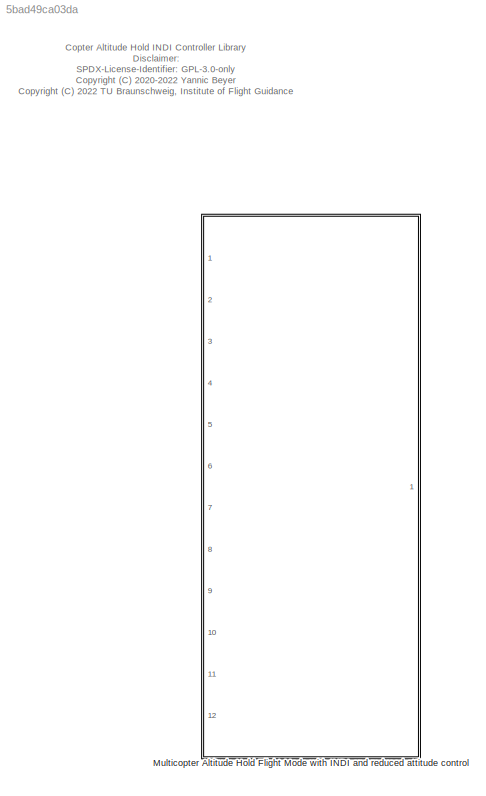
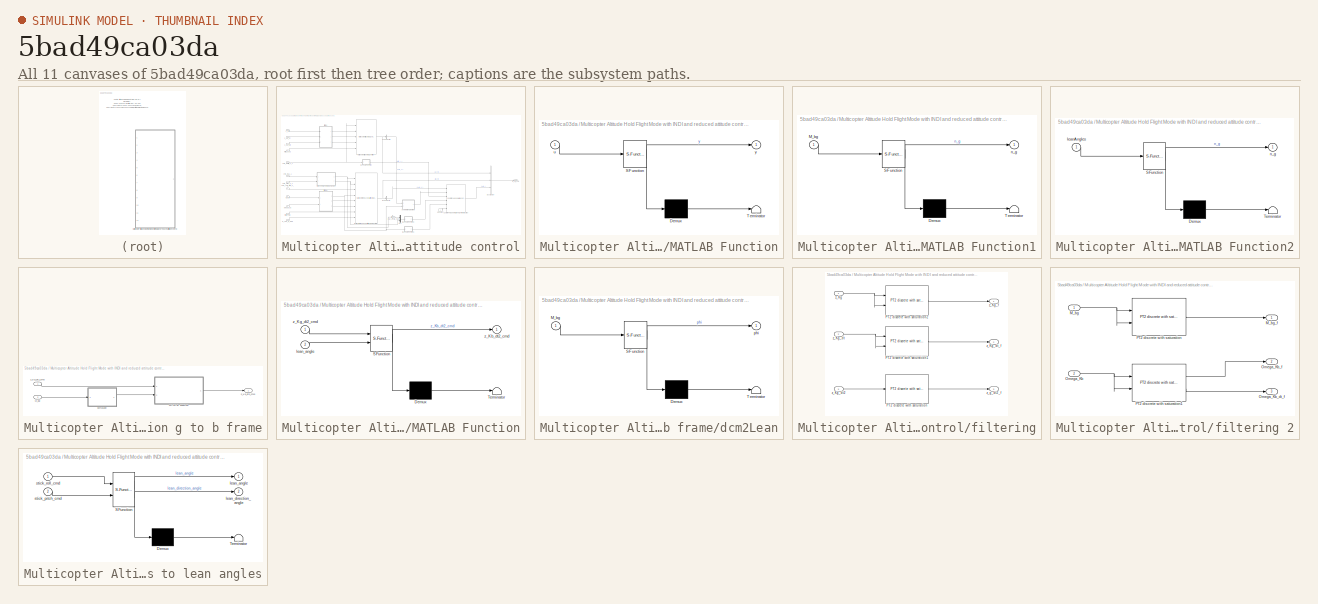
[diagram: thumbnail index - all 11 canvases of the model, root first then tree order]
MODEL slx_5bad49ca03da
KIND library
CONFIG AbsTol = auto
CONFIG EnableMultiTasking = off
CONFIG FixedStep = auto
CONFIG MaxStep = auto
CONFIG MinStep = auto
CONFIG RelTol = 1e-3
CONFIG SampleTimeConstraint = Unconstrained
CONFIG Solver = VariableStepAuto
CONFIG SolverName = VariableStepAuto
CONFIG StartTime = 0.0
CONFIG StopTime = 10.0
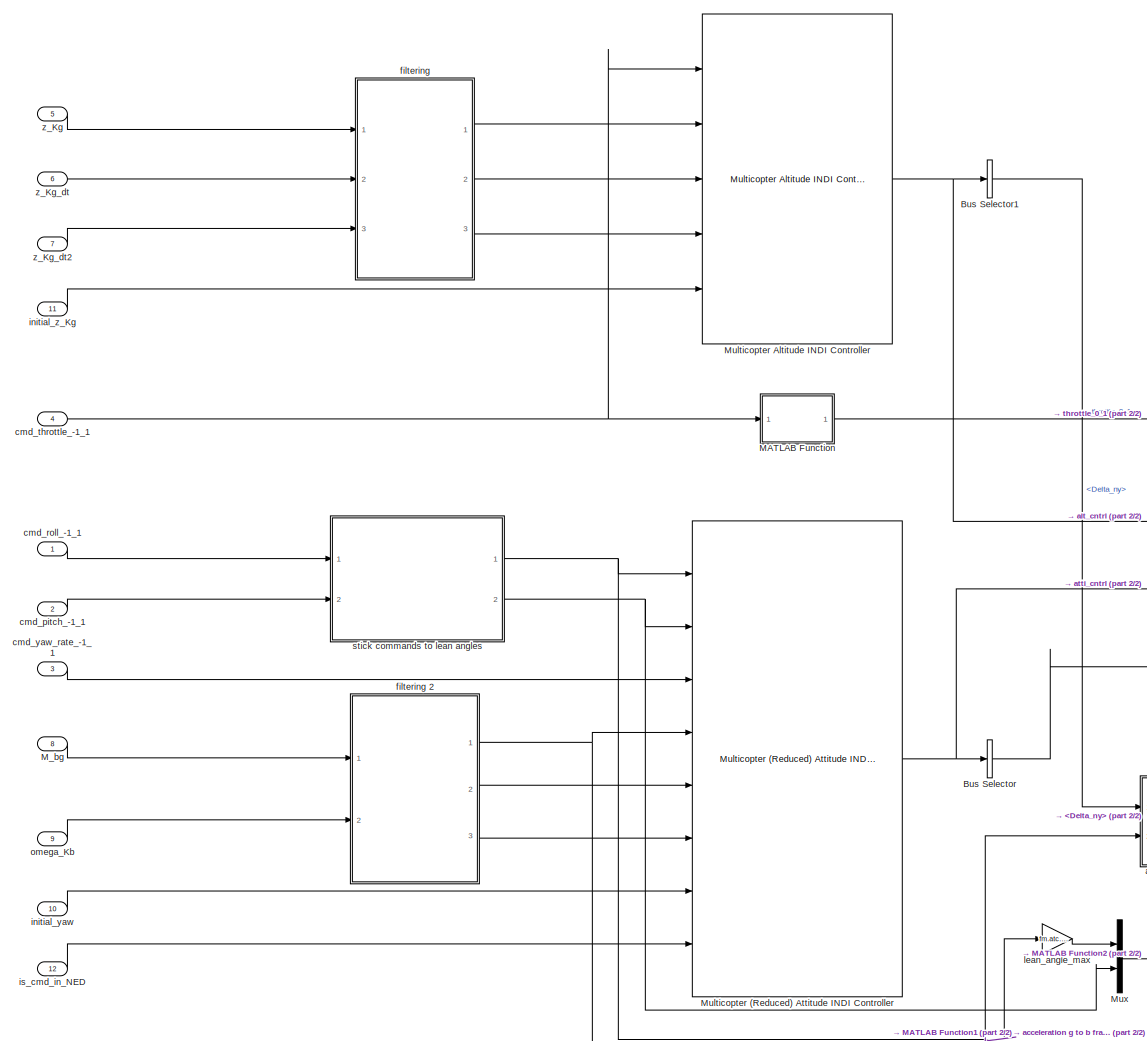
[diagram: Multicopter Altitude Hold Flight Mode with INDI and reduced attitude control - part 1/2, left side, full height]
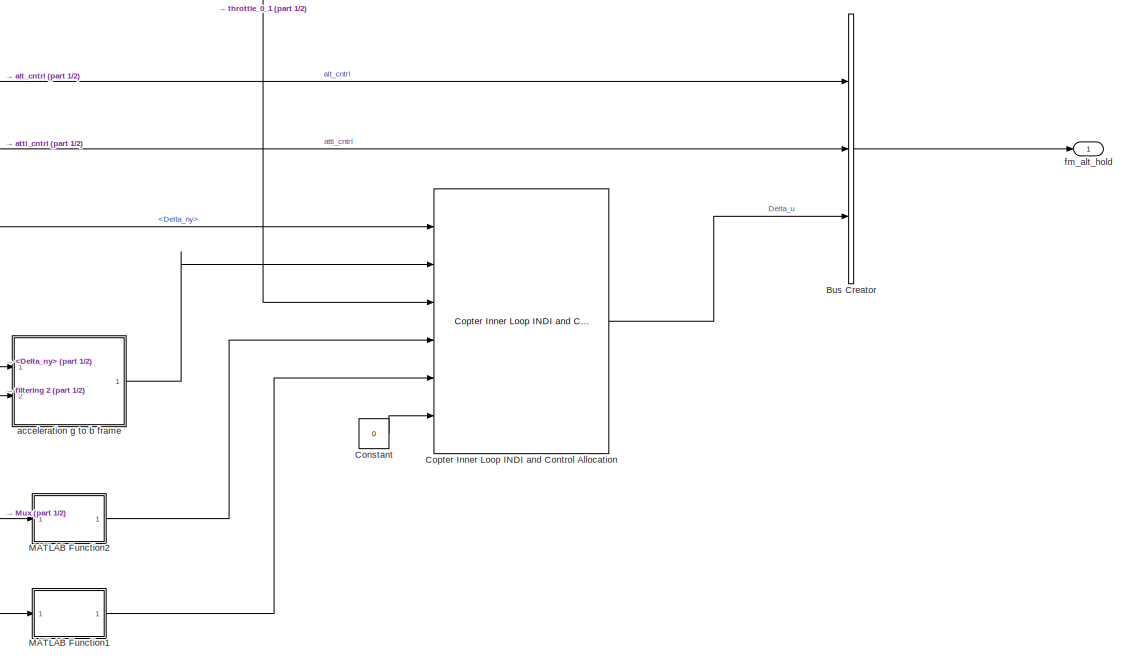
[diagram: Multicopter Altitude Hold Flight Mode with INDI and reduced attitude control - part 2/2, bottom right region]
BLOCK [SubSystem] Multicopter Altitude Hold Flight Mode with INDI and reduced attitude control
  Ports = [12, 1]
  RequestExecContextInheritance = off
BLOCK [BusCreator] Multicopter Altitude Hold Flight Mode with INDI and reduced attitude control/Bus Creator
  DisplayOption = bar
  InheritFromInputs = on
  Inputs = 3
  Ports = [3, 1]
BLOCK [BusSelector] Multicopter Altitude Hold Flight Mode with INDI and reduced attitude control/Bus Selector
  OutputAsBus = off
  OutputSignals = pseudo_control.Delta_ny
  Ports = [1, 1]
BLOCK [BusSelector] Multicopter Altitude Hold Flight Mode with INDI and reduced attitude control/Bus Selector1
  OutputAsBus = off
  OutputSignals = pseudo_control.Delta_ny
  Ports = [1, 1]
BLOCK [Constant] Multicopter Altitude Hold Flight Mode with INDI and reduced attitude control/Constant
  Value = 0
BLOCK [Reference] Multicopter Altitude Hold Flight Mode with INDI and reduced attitude control/Copter Inner Loop INDI and Control Allocation  REF=indi_lib/Copter Inner Loop INDI and Control Allocation  (lib defined in slx_750e0a027594)
  Ports = [6, 1]
  SourceBlock = indi_lib/Copter Inner Loop INDI and Control Allocation
  SourceProductName = LADAC
BLOCK [SubSystem] Multicopter Altitude Hold Flight Mode with INDI and reduced attitude control/MATLAB Function
  ErrorFcn = Stateflow.Translate.translate
  PermitHierarchicalResolution = ExplicitOnly
  Ports = [1, 1]
  RequestExecContextInheritance = off
  SFBlockType = MATLAB Function
  TreatAsAtomicUnit = on
BLOCK [Demux] Multicopter Altitude Hold Flight Mode with INDI and reduced attitude control/MATLAB Function/ Demux 
  Outputs = 1
  Ports = [1, 1]
BLOCK [S-Function] Multicopter Altitude Hold Flight Mode with INDI and reduced attitude control/MATLAB Function/ SFunction 
  EnableBusSupport = off
  FunctionName = sf_sfun
  PortCounts = [1 2]
  Ports = [1, 2]
  SFcnIsStateOwnerBlock = off
  SFunctionDeploymentMode = off
  Tag = Stateflow S-Function fmCopterAltHoldIndi_lib 2
BLOCK [Terminator] Multicopter Altitude Hold Flight Mode with INDI and reduced attitude control/MATLAB Function/ Terminator 
BLOCK [Inport] Multicopter Altitude Hold Flight Mode with INDI and reduced attitude control/MATLAB Function/u
  IconDisplay = Port number
BLOCK [Outport] Multicopter Altitude Hold Flight Mode with INDI and reduced attitude control/MATLAB Function/y
  IconDisplay = Port number
BLOCK [SubSystem] Multicopter Altitude Hold Flight Mode with INDI and reduced attitude control/MATLAB Function1
  ErrorFcn = Stateflow.Translate.translate
  PermitHierarchicalResolution = ExplicitOnly
  Ports = [1, 1]
  RequestExecContextInheritance = off
  SFBlockType = MATLAB Function
  TreatAsAtomicUnit = on
BLOCK [Demux] Multicopter Altitude Hold Flight Mode with INDI and reduced attitude control/MATLAB Function1/ Demux 
  Outputs = 1
  Ports = [1, 1]
BLOCK [S-Function] Multicopter Altitude Hold Flight Mode with INDI and reduced attitude control/MATLAB Function1/ SFunction 
  EnableBusSupport = off
  FunctionName = sf_sfun
  PortCounts = [1 2]
  Ports = [1, 2]
  SFcnIsStateOwnerBlock = off
  SFunctionDeploymentMode = off
  Tag = Stateflow S-Function fmCopterAltHoldIndi_lib 1
BLOCK [Terminator] Multicopter Altitude Hold Flight Mode with INDI and reduced attitude control/MATLAB Function1/ Terminator 
BLOCK [Inport] Multicopter Altitude Hold Flight Mode with INDI and reduced attitude control/MATLAB Function1/M_bg
  IconDisplay = Port number
BLOCK [Outport] Multicopter Altitude Hold Flight Mode with INDI and reduced attitude control/MATLAB Function1/n_g
  IconDisplay = Port number
BLOCK [SubSystem] Multicopter Altitude Hold Flight Mode with INDI and reduced attitude control/MATLAB Function2
  ErrorFcn = Stateflow.Translate.translate
  PermitHierarchicalResolution = ExplicitOnly
  Ports = [1, 1]
  RequestExecContextInheritance = off
  SFBlockType = MATLAB Function
  TreatAsAtomicUnit = on
BLOCK [Demux] Multicopter Altitude Hold Flight Mode with INDI and reduced attitude control/MATLAB Function2/ Demux 
  Outputs = 1
  Ports = [1, 1]
BLOCK [S-Function] Multicopter Altitude Hold Flight Mode with INDI and reduced attitude control/MATLAB Function2/ SFunction 
  EnableBusSupport = off
  FunctionName = sf_sfun
  PortCounts = [1 2]
  Ports = [1, 2]
  SFcnIsStateOwnerBlock = off
  SFunctionDeploymentMode = off
  Tag = Stateflow S-Function fmCopterAltHoldIndi_lib 6
BLOCK [Terminator] Multicopter Altitude Hold Flight Mode with INDI and reduced attitude control/MATLAB Function2/ Terminator 
BLOCK [Inport] Multicopter Altitude Hold Flight Mode with INDI and reduced attitude control/MATLAB Function2/leanAngles
  IconDisplay = Port number
BLOCK [Outport] Multicopter Altitude Hold Flight Mode with INDI and reduced attitude control/MATLAB Function2/n_g
  IconDisplay = Port number
BLOCK [Inport] Multicopter Altitude Hold Flight Mode with INDI and reduced attitude control/M_bg
  IconDisplay = Port number
  Port = 8
  SampleTime = fm.ts
BLOCK [Reference] Multicopter Altitude Hold Flight Mode with INDI and reduced attitude control/Multicopter (Reduced) Attitude INDI Controller  REF=cntrlAttiRedIndi_lib/Multicopter (Reduced) Attitude INDI Controller
  Ports = [8, 1]
  SourceBlock = cntrlAttiRedIndi_lib/Multicopter (Reduced) Attitude INDI Controller
  SourceProductName = LADAC
BLOCK [Reference] Multicopter Altitude Hold Flight Mode with INDI and reduced attitude control/Multicopter Altitude INDI Controller  REF=cntrlAltIndi_lib/Multicopter Altitude INDI Controller
  Ports = [5, 1]
  SourceBlock = cntrlAltIndi_lib/Multicopter Altitude INDI Controller
  SourceProductName = LADAC
BLOCK [Mux] Multicopter Altitude Hold Flight Mode with INDI and reduced attitude control/Mux
  DisplayOption = bar
  Inputs = 2
  Ports = [2, 1]
BLOCK [SubSystem] Multicopter Altitude Hold Flight Mode with INDI and reduced attitude control/acceleration g to b frame
  Ports = [2, 1]
  RequestExecContextInheritance = off
BLOCK [SubSystem] Multicopter Altitude Hold Flight Mode with INDI and reduced attitude control/acceleration g to b frame/MATLAB Function
  ErrorFcn = Stateflow.Translate.translate
  PermitHierarchicalResolution = ExplicitOnly
  Ports = [2, 1]
  RequestExecContextInheritance = off
  SFBlockType = MATLAB Function
  TreatAsAtomicUnit = on
BLOCK [Demux] Multicopter Altitude Hold Flight Mode with INDI and reduced attitude control/acceleration g to b frame/MATLAB Function/ Demux 
  Outputs = 1
  Ports = [1, 1]
BLOCK [S-Function] Multicopter Altitude Hold Flight Mode with INDI and reduced attitude control/acceleration g to b frame/MATLAB Function/ SFunction 
  EnableBusSupport = off
  FunctionName = sf_sfun
  PortCounts = [2 2]
  Ports = [2, 2]
  SFcnIsStateOwnerBlock = off
  SFunctionDeploymentMode = off
  Tag = Stateflow S-Function fmCopterAltHoldIndi_lib 4
BLOCK [Terminator] Multicopter Altitude Hold Flight Mode with INDI and reduced attitude control/acceleration g to b frame/MATLAB Function/ Terminator 
BLOCK [Inport] Multicopter Altitude Hold Flight Mode with INDI and reduced attitude control/acceleration g to b frame/MATLAB Function/lean_angle
  IconDisplay = Port number
  Port = 2
BLOCK [Outport] Multicopter Altitude Hold Flight Mode with INDI and reduced attitude control/acceleration g to b frame/MATLAB Function/z_Kb_dt2_cmd
  IconDisplay = Port number
BLOCK [Inport] Multicopter Altitude Hold Flight Mode with INDI and reduced attitude control/acceleration g to b frame/MATLAB Function/z_Kg_dt2_cmd
  IconDisplay = Port number
BLOCK [Inport] Multicopter Altitude Hold Flight Mode with INDI and reduced attitude control/acceleration g to b frame/M_bg
  IconDisplay = Port number
  Port = 2
BLOCK [SubSystem] Multicopter Altitude Hold Flight Mode with INDI and reduced attitude control/acceleration g to b frame/dcm2Lean
  ErrorFcn = Stateflow.Translate.translate
  PermitHierarchicalResolution = ExplicitOnly
  Ports = [1, 1]
  RequestExecContextInheritance = off
  SFBlockType = MATLAB Function
  TreatAsAtomicUnit = on
BLOCK [Demux] Multicopter Altitude Hold Flight Mode with INDI and reduced attitude control/acceleration g to b frame/dcm2Lean/ Demux 
  Outputs = 1
  Ports = [1, 1]
BLOCK [S-Function] Multicopter Altitude Hold Flight Mode with INDI and reduced attitude control/acceleration g to b frame/dcm2Lean/ SFunction 
  EnableBusSupport = off
  FunctionName = sf_sfun
  PortCounts = [1 2]
  Ports = [1, 2]
  SFcnIsStateOwnerBlock = off
  SFunctionDeploymentMode = off
  Tag = Stateflow S-Function fmCopterAltHoldIndi_lib 5
BLOCK [Terminator] Multicopter Altitude Hold Flight Mode with INDI and reduced attitude control/acceleration g to b frame/dcm2Lean/ Terminator 
BLOCK [Inport] Multicopter Altitude Hold Flight Mode with INDI and reduced attitude control/acceleration g to b frame/dcm2Lean/M_bg
  IconDisplay = Port number
BLOCK [Outport] Multicopter Altitude Hold Flight Mode with INDI and reduced attitude control/acceleration g to b frame/dcm2Lean/phi
  IconDisplay = Port number
BLOCK [Outport] Multicopter Altitude Hold Flight Mode with INDI and reduced attitude control/acceleration g to b frame/z_Kb_dt2_cmd
  IconDisplay = Port number
BLOCK [Inport] Multicopter Altitude Hold Flight Mode with INDI and reduced attitude control/acceleration g to b frame/z_Kg_dt2_cmd
  IconDisplay = Port number
BLOCK [Inport] Multicopter Altitude Hold Flight Mode with INDI and reduced attitude control/cmd_pitch_-1_1
  IconDisplay = Port number
  Port = 2
  SampleTime = fm.ts
BLOCK [Inport] Multicopter Altitude Hold Flight Mode with INDI and reduced attitude control/cmd_roll_-1_1
  IconDisplay = Port number
  SampleTime = fm.ts
BLOCK [Inport] Multicopter Altitude Hold Flight Mode with INDI and reduced attitude control/cmd_throttle_-1_1
  IconDisplay = Port number
  Port = 4
  SampleTime = fm.ts
BLOCK [Inport] Multicopter Altitude Hold Flight Mode with INDI and reduced attitude control/cmd_yaw_rate_-1_1
  IconDisplay = Port number
  Port = 3
  SampleTime = fm.ts
BLOCK [SubSystem] Multicopter Altitude Hold Flight Mode with INDI and reduced attitude control/filtering
  Ports = [3, 3]
  RequestExecContextInheritance = off
BLOCK [SubSystem] Multicopter Altitude Hold Flight Mode with INDI and reduced attitude control/filtering 2
  Ports = [2, 3]
  RequestExecContextInheritance = off
BLOCK [Inport] Multicopter Altitude Hold Flight Mode with INDI and reduced attitude control/filtering 2/M_bg
  IconDisplay = Port number
BLOCK [Outport] Multicopter Altitude Hold Flight Mode with INDI and reduced attitude control/filtering 2/M_bg_f
  IconDisplay = Port number
BLOCK [Inport] Multicopter Altitude Hold Flight Mode with INDI and reduced attitude control/filtering 2/Omega_Kb
  IconDisplay = Port number
  Port = 2
BLOCK [Outport] Multicopter Altitude Hold Flight Mode with INDI and reduced attitude control/filtering 2/Omega_Kb_dt_f
  IconDisplay = Port number
  Port = 3
BLOCK [Outport] Multicopter Altitude Hold Flight Mode with INDI and reduced attitude control/filtering 2/Omega_Kb_f
  IconDisplay = Port number
  Port = 2
BLOCK [Reference] Multicopter Altitude Hold Flight Mode with INDI and reduced attitude control/filtering 2/PT2 discrete with saturation  REF=filters_lib/PT2 discrete with saturation  (lib defined in slx_a584fcc4ebc5)
  Ports = [2, 1]
  SourceBlock = filters_lib/PT2 discrete with saturation
  SourceProductName = LADAC
BLOCK [Reference] Multicopter Altitude Hold Flight Mode with INDI and reduced attitude control/filtering 2/PT2 discrete with saturation1  REF=filters_lib/PT2 discrete with saturation  (lib defined in slx_a584fcc4ebc5)
  Ports = [2, 2]
  SourceBlock = filters_lib/PT2 discrete with saturation
  SourceProductName = LADAC
BLOCK [Reference] Multicopter Altitude Hold Flight Mode with INDI and reduced attitude control/filtering/PT2 discrete with saturation  REF=filters_lib/PT2 discrete with saturation  (lib defined in slx_a584fcc4ebc5)
  Ports = [1, 1]
  SourceBlock = filters_lib/PT2 discrete with saturation
  SourceProductName = LADAC
BLOCK [Reference] Multicopter Altitude Hold Flight Mode with INDI and reduced attitude control/filtering/PT2 discrete with saturation1  REF=filters_lib/PT2 discrete with saturation  (lib defined in slx_a584fcc4ebc5)
  Ports = [2, 1]
  SourceBlock = filters_lib/PT2 discrete with saturation
  SourceProductName = LADAC
BLOCK [Reference] Multicopter Altitude Hold Flight Mode with INDI and reduced attitude control/filtering/PT2 discrete with saturation2  REF=filters_lib/PT2 discrete with saturation  (lib defined in slx_a584fcc4ebc5)
  Ports = [2, 1]
  SourceBlock = filters_lib/PT2 discrete with saturation
  SourceProductName = LADAC
BLOCK [Inport] Multicopter Altitude Hold Flight Mode with INDI and reduced attitude control/filtering/z_Kg
  IconDisplay = Port number
BLOCK [Inport] Multicopter Altitude Hold Flight Mode with INDI and reduced attitude control/filtering/z_Kg_dt
  IconDisplay = Port number
  Port = 2
BLOCK [Inport] Multicopter Altitude Hold Flight Mode with INDI and reduced attitude control/filtering/z_Kg_dt2
  IconDisplay = Port number
  Port = 3
BLOCK [Outport] Multicopter Altitude Hold Flight Mode with INDI and reduced attitude control/filtering/z_Kg_dt_f
  IconDisplay = Port number
  Port = 2
BLOCK [Outport] Multicopter Altitude Hold Flight Mode with INDI and reduced attitude control/filtering/z_Kg_f
  IconDisplay = Port number
BLOCK [Outport] Multicopter Altitude Hold Flight Mode with INDI and reduced attitude control/filtering/z_g_dt2_f
  IconDisplay = Port number
  Port = 3
BLOCK [Outport] Multicopter Altitude Hold Flight Mode with INDI and reduced attitude control/fm_alt_hold
  IconDisplay = Port number
  SampleTime = fm.ts
  SamplingMode = Sample based
  SignalType = real
BLOCK [Inport] Multicopter Altitude Hold Flight Mode with INDI and reduced attitude control/initial_yaw
  IconDisplay = Port number
  Port = 10
  SampleTime = fm.ts
BLOCK [Inport] Multicopter Altitude Hold Flight Mode with INDI and reduced attitude control/initial_z_Kg
  IconDisplay = Port number
  Port = 11
  SampleTime = fm.ts
BLOCK [Inport] Multicopter Altitude Hold Flight Mode with INDI and reduced attitude control/is_cmd_in_NED
  IconDisplay = Port number
  Port = 12
  SampleTime = fm.ts
BLOCK [Gain] Multicopter Altitude Hold Flight Mode with INDI and reduced attitude control/lean_angle_max
  Gain = fm.atc.rm.leanmax
  OutDataTypeStr = Inherit: Inherit via internal rule
  ParamDataTypeStr = Inherit: Inherit via internal rule
  SaturateOnIntegerOverflow = off
BLOCK [Inport] Multicopter Altitude Hold Flight Mode with INDI and reduced attitude control/omega_Kb
  IconDisplay = Port number
  Port = 9
  SampleTime = fm.ts
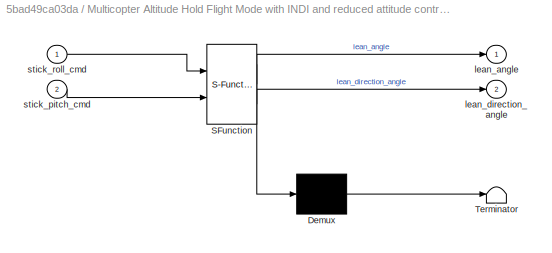
BLOCK [SubSystem] Multicopter Altitude Hold Flight Mode with INDI and reduced attitude control/stick commands to lean angles
  ErrorFcn = Stateflow.Translate.translate
  PermitHierarchicalResolution = ExplicitOnly
  Ports = [2, 2]
  RequestExecContextInheritance = off
  SFBlockType = MATLAB Function
  TreatAsAtomicUnit = on
BLOCK [Demux] Multicopter Altitude Hold Flight Mode with INDI and reduced attitude control/stick commands to lean angles/ Demux 
  Outputs = 1
  Ports = [1, 1]
BLOCK [S-Function] Multicopter Altitude Hold Flight Mode with INDI and reduced attitude control/stick commands to lean angles/ SFunction 
  EnableBusSupport = off
  FunctionName = sf_sfun
  PortCounts = [2 3]
  Ports = [2, 3]
  SFcnIsStateOwnerBlock = off
  SFunctionDeploymentMode = off
  Tag = Stateflow S-Function fmCopterAltHoldIndi_lib 3
BLOCK [Terminator] Multicopter Altitude Hold Flight Mode with INDI and reduced attitude control/stick commands to lean angles/ Terminator 
BLOCK [Outport] Multicopter Altitude Hold Flight Mode with INDI and reduced attitude control/stick commands to lean angles/lean_angle
  IconDisplay = Port number
BLOCK [Outport] Multicopter Altitude Hold Flight Mode with INDI and reduced attitude control/stick commands to lean angles/lean_direction_angle
  IconDisplay = Port number
  Port = 2
BLOCK [Inport] Multicopter Altitude Hold Flight Mode with INDI and reduced attitude control/stick commands to lean angles/stick_pitch_cmd
  IconDisplay = Port number
  Port = 2
BLOCK [Inport] Multicopter Altitude Hold Flight Mode with INDI and reduced attitude control/stick commands to lean angles/stick_roll_cmd
  IconDisplay = Port number
BLOCK [Inport] Multicopter Altitude Hold Flight Mode with INDI and reduced attitude control/z_Kg
  IconDisplay = Port number
  Port = 5
  SampleTime = fm.ts
BLOCK [Inport] Multicopter Altitude Hold Flight Mode with INDI and reduced attitude control/z_Kg_dt
  IconDisplay = Port number
  Port = 6
  SampleTime = fm.ts
BLOCK [Inport] Multicopter Altitude Hold Flight Mode with INDI and reduced attitude control/z_Kg_dt2
  IconDisplay = Port number
  Port = 7
  SampleTime = fm.ts
ANNOTATION (root): Copter Altitude Hold INDI Controller Library Disclaimer: SPDX-License-Identifier: GPL-3.0-only <copyright redacted>
LINE Multicopter Altitude Hold Flight Mode with INDI and reduced attitude control/Bus Creator:1 -> Multicopter Altitude Hold Flight Mode with INDI and reduced attitude control/fm_alt_hold:1
LINE Multicopter Altitude Hold Flight Mode with INDI and reduced attitude control/Bus Selector1:1 -> Multicopter Altitude Hold Flight Mode with INDI and reduced attitude control/acceleration g to b frame:1
LINE Multicopter Altitude Hold Flight Mode with INDI and reduced attitude control/Bus Selector:1 -> Multicopter Altitude Hold Flight Mode with INDI and reduced attitude control/Copter Inner Loop INDI and Control Allocation:1
LINE Multicopter Altitude Hold Flight Mode with INDI and reduced attitude control/Constant:1 -> Multicopter Altitude Hold Flight Mode with INDI and reduced attitude control/Copter Inner Loop INDI and Control Allocation:6
LINE Multicopter Altitude Hold Flight Mode with INDI and reduced attitude control/Copter Inner Loop INDI and Control Allocation:1 -> Multicopter Altitude Hold Flight Mode with INDI and reduced attitude control/Bus Creator:3
LINE Multicopter Altitude Hold Flight Mode with INDI and reduced attitude control/MATLAB Function1:1 -> Multicopter Altitude Hold Flight Mode with INDI and reduced attitude control/Copter Inner Loop INDI and Control Allocation:5
LINE Multicopter Altitude Hold Flight Mode with INDI and reduced attitude control/MATLAB Function2:1 -> Multicopter Altitude Hold Flight Mode with INDI and reduced attitude control/Copter Inner Loop INDI and Control Allocation:4
LINE Multicopter Altitude Hold Flight Mode with INDI and reduced attitude control/MATLAB Function:1 -> Multicopter Altitude Hold Flight Mode with INDI and reduced attitude control/Copter Inner Loop INDI and Control Allocation:3
LINE Multicopter Altitude Hold Flight Mode with INDI and reduced attitude control/M_bg:1 -> Multicopter Altitude Hold Flight Mode with INDI and reduced attitude control/filtering 2:1
NET Multicopter Altitude Hold Flight Mode with INDI and reduced attitude control/Multicopter (Reduced) Attitude INDI Controller:1 -> Multicopter Altitude Hold Flight Mode with INDI and reduced attitude control/Bus Creator:2, Multicopter Altitude Hold Flight Mode with INDI and reduced attitude control/Bus Selector:1
NET Multicopter Altitude Hold Flight Mode with INDI and reduced attitude control/Multicopter Altitude INDI Controller:1 -> Multicopter Altitude Hold Flight Mode with INDI and reduced attitude control/Bus Creator:1, Multicopter Altitude Hold Flight Mode with INDI and reduced attitude control/Bus Selector1:1
LINE Multicopter Altitude Hold Flight Mode with INDI and reduced attitude control/Mux:1 -> Multicopter Altitude Hold Flight Mode with INDI and reduced attitude control/MATLAB Function2:1
LINE Multicopter Altitude Hold Flight Mode with INDI and reduced attitude control/acceleration g to b frame/MATLAB Function:1 -> Multicopter Altitude Hold Flight Mode with INDI and reduced attitude control/acceleration g to b frame/z_Kb_dt2_cmd:1
LINE Multicopter Altitude Hold Flight Mode with INDI and reduced attitude control/acceleration g to b frame/M_bg:1 -> Multicopter Altitude Hold Flight Mode with INDI and reduced attitude control/acceleration g to b frame/dcm2Lean:1
LINE Multicopter Altitude Hold Flight Mode with INDI and reduced attitude control/acceleration g to b frame/dcm2Lean:1 -> Multicopter Altitude Hold Flight Mode with INDI and reduced attitude control/acceleration g to b frame/MATLAB Function:2
LINE Multicopter Altitude Hold Flight Mode with INDI and reduced attitude control/acceleration g to b frame/z_Kg_dt2_cmd:1 -> Multicopter Altitude Hold Flight Mode with INDI and reduced attitude control/acceleration g to b frame/MATLAB Function:1
LINE Multicopter Altitude Hold Flight Mode with INDI and reduced attitude control/acceleration g to b frame:1 -> Multicopter Altitude Hold Flight Mode with INDI and reduced attitude control/Copter Inner Loop INDI and Control Allocation:2
LINE Multicopter Altitude Hold Flight Mode with INDI and reduced attitude control/cmd_pitch_-1_1:1 -> Multicopter Altitude Hold Flight Mode with INDI and reduced attitude control/stick commands to lean angles:2
LINE Multicopter Altitude Hold Flight Mode with INDI and reduced attitude control/cmd_roll_-1_1:1 -> Multicopter Altitude Hold Flight Mode with INDI and reduced attitude control/stick commands to lean angles:1
NET Multicopter Altitude Hold Flight Mode with INDI and reduced attitude control/cmd_throttle_-1_1:1 -> Multicopter Altitude Hold Flight Mode with INDI and reduced attitude control/MATLAB Function:1, Multicopter Altitude Hold Flight Mode with INDI and reduced attitude control/Multicopter Altitude INDI Controller:1
LINE Multicopter Altitude Hold Flight Mode with INDI and reduced attitude control/cmd_yaw_rate_-1_1:1 -> Multicopter Altitude Hold Flight Mode with INDI and reduced attitude control/Multicopter (Reduced) Attitude INDI Controller:3
NET Multicopter Altitude Hold Flight Mode with INDI and reduced attitude control/filtering 2/M_bg:1 -> Multicopter Altitude Hold Flight Mode with INDI and reduced attitude control/filtering 2/PT2 discrete with saturation:1, Multicopter Altitude Hold Flight Mode with INDI and reduced attitude control/filtering 2/PT2 discrete with saturation:2
NET Multicopter Altitude Hold Flight Mode with INDI and reduced attitude control/filtering 2/Omega_Kb:1 -> Multicopter Altitude Hold Flight Mode with INDI and reduced attitude control/filtering 2/PT2 discrete with saturation1:1, Multicopter Altitude Hold Flight Mode with INDI and reduced attitude control/filtering 2/PT2 discrete with saturation1:2
LINE Multicopter Altitude Hold Flight Mode with INDI and reduced attitude control/filtering 2/PT2 discrete with saturation1:1 -> Multicopter Altitude Hold Flight Mode with INDI and reduced attitude control/filtering 2/Omega_Kb_f:1
LINE Multicopter Altitude Hold Flight Mode with INDI and reduced attitude control/filtering 2/PT2 discrete with saturation1:2 -> Multicopter Altitude Hold Flight Mode with INDI and reduced attitude control/filtering 2/Omega_Kb_dt_f:1
LINE Multicopter Altitude Hold Flight Mode with INDI and reduced attitude control/filtering 2/PT2 discrete with saturation:1 -> Multicopter Altitude Hold Flight Mode with INDI and reduced attitude control/filtering 2/M_bg_f:1
NET Multicopter Altitude Hold Flight Mode with INDI and reduced attitude control/filtering 2:1 -> Multicopter Altitude Hold Flight Mode with INDI and reduced attitude control/MATLAB Function1:1, Multicopter Altitude Hold Flight Mode with INDI and reduced attitude control/Multicopter (Reduced) Attitude INDI Controller:4, Multicopter Altitude Hold Flight Mode with INDI and reduced attitude control/acceleration g to b frame:2
LINE Multicopter Altitude Hold Flight Mode with INDI and reduced attitude control/filtering 2:2 -> Multicopter Altitude Hold Flight Mode with INDI and reduced attitude control/Multicopter (Reduced) Attitude INDI Controller:5
LINE Multicopter Altitude Hold Flight Mode with INDI and reduced attitude control/filtering 2:3 -> Multicopter Altitude Hold Flight Mode with INDI and reduced attitude control/Multicopter (Reduced) Attitude INDI Controller:6
LINE Multicopter Altitude Hold Flight Mode with INDI and reduced attitude control/filtering/PT2 discrete with saturation1:1 -> Multicopter Altitude Hold Flight Mode with INDI and reduced attitude control/filtering/z_Kg_dt_f:1
LINE Multicopter Altitude Hold Flight Mode with INDI and reduced attitude control/filtering/PT2 discrete with saturation2:1 -> Multicopter Altitude Hold Flight Mode with INDI and reduced attitude control/filtering/z_Kg_f:1
LINE Multicopter Altitude Hold Flight Mode with INDI and reduced attitude control/filtering/PT2 discrete with saturation:1 -> Multicopter Altitude Hold Flight Mode with INDI and reduced attitude control/filtering/z_g_dt2_f:1
NET Multicopter Altitude Hold Flight Mode with INDI and reduced attitude control/filtering/z_Kg:1 -> Multicopter Altitude Hold Flight Mode with INDI and reduced attitude control/filtering/PT2 discrete with saturation2:1, Multicopter Altitude Hold Flight Mode with INDI and reduced attitude control/filtering/PT2 discrete with saturation2:2
LINE Multicopter Altitude Hold Flight Mode with INDI and reduced attitude control/filtering/z_Kg_dt2:1 -> Multicopter Altitude Hold Flight Mode with INDI and reduced attitude control/filtering/PT2 discrete with saturation:1
NET Multicopter Altitude Hold Flight Mode with INDI and reduced attitude control/filtering/z_Kg_dt:1 -> Multicopter Altitude Hold Flight Mode with INDI and reduced attitude control/filtering/PT2 discrete with saturation1:1, Multicopter Altitude Hold Flight Mode with INDI and reduced attitude control/filtering/PT2 discrete with saturation1:2
LINE Multicopter Altitude Hold Flight Mode with INDI and reduced attitude control/filtering:1 -> Multicopter Altitude Hold Flight Mode with INDI and reduced attitude control/Multicopter Altitude INDI Controller:2
LINE Multicopter Altitude Hold Flight Mode with INDI and reduced attitude control/filtering:2 -> Multicopter Altitude Hold Flight Mode with INDI and reduced attitude control/Multicopter Altitude INDI Controller:3
LINE Multicopter Altitude Hold Flight Mode with INDI and reduced attitude control/filtering:3 -> Multicopter Altitude Hold Flight Mode with INDI and reduced attitude control/Multicopter Altitude INDI Controller:4
LINE Multicopter Altitude Hold Flight Mode with INDI and reduced attitude control/initial_yaw:1 -> Multicopter Altitude Hold Flight Mode with INDI and reduced attitude control/Multicopter (Reduced) Attitude INDI Controller:7
LINE Multicopter Altitude Hold Flight Mode with INDI and reduced attitude control/initial_z_Kg:1 -> Multicopter Altitude Hold Flight Mode with INDI and reduced attitude control/Multicopter Altitude INDI Controller:5
LINE Multicopter Altitude Hold Flight Mode with INDI and reduced attitude control/is_cmd_in_NED:1 -> Multicopter Altitude Hold Flight Mode with INDI and reduced attitude control/Multicopter (Reduced) Attitude INDI Controller:8
LINE Multicopter Altitude Hold Flight Mode with INDI and reduced attitude control/lean_angle_max:1 -> Multicopter Altitude Hold Flight Mode with INDI and reduced attitude control/Mux:1
LINE Multicopter Altitude Hold Flight Mode with INDI and reduced attitude control/omega_Kb:1 -> Multicopter Altitude Hold Flight Mode with INDI and reduced attitude control/filtering 2:2
NET Multicopter Altitude Hold Flight Mode with INDI and reduced attitude control/stick commands to lean angles:1 -> Multicopter Altitude Hold Flight Mode with INDI and reduced attitude control/Multicopter (Reduced) Attitude INDI Controller:1, Multicopter Altitude Hold Flight Mode with INDI and reduced attitude control/lean_angle_max:1
NET Multicopter Altitude Hold Flight Mode with INDI and reduced attitude control/stick commands to lean angles:2 -> Multicopter Altitude Hold Flight Mode with INDI and reduced attitude control/Multicopter (Reduced) Attitude INDI Controller:2, Multicopter Altitude Hold Flight Mode with INDI and reduced attitude control/Mux:2
LINE Multicopter Altitude Hold Flight Mode with INDI and reduced attitude control/z_Kg:1 -> Multicopter Altitude Hold Flight Mode with INDI and reduced attitude control/filtering:1
LINE Multicopter Altitude Hold Flight Mode with INDI and reduced attitude control/z_Kg_dt2:1 -> Multicopter Altitude Hold Flight Mode with INDI and reduced attitude control/filtering:3
LINE Multicopter Altitude Hold Flight Mode with INDI and reduced attitude control/z_Kg_dt:1 -> Multicopter Altitude Hold Flight Mode with INDI and reduced attitude control/filtering:2
note: NET lines group one-source signal fan-out (src -> all destinations, sorted); 1:1 wires keep LINE
CHART Multicopter Altitude Hold Flight Mode
with INDI and reduced attitude control/MATLAB Function1 states=1 transitions=1
  STATE_LABEL 'eML_blk_kernel()'
  STATE_LABEL 'SCRIPT:\nfunction n_g = dcm2LeanVector( M_bg )\nn_g = dcm2LeanVector( M_bg );\nend'
CHART Multicopter Altitude Hold Flight Mode
with INDI and reduced attitude control/MATLAB Function states=1 transitions=1
  STATE_LABEL 'eML_blk_kernel()'
  STATE_LABEL 'SCRIPT:\nfunction y = fcn(u)\ny = 0.5*u+0.5;\n'
CHART Multicopter Altitude Hold Flight Mode
with INDI and reduced attitude control/stick commands to lean angles states=1 transitions=1
  STATE_LABEL 'eML_blk_kernel()'
  STATE_LABEL 'SCRIPT:\nfunction [lean_angle,lean_direction_angle] = fcn(stick_roll_cmd,stick_pitch_cmd)\n\nlean_direction_angle = atan2(stick_roll_cmd,-stick_pitch_cmd);\nlean_angle = sqrt( stick_roll_cmd^2 + stick_pitch_cmd^2 );\n\nend\n'
CHART Multicopter Altitude Hold Flight Mode
with INDI and reduced attitude control/acceleration g to b frame/MATLAB Function states=1 transitions=1
  STATE_LABEL 'eML_blk_kernel()'
  STATE_LABEL 'SCRIPT:\nfunction z_Kb_dt2_cmd = fcn(z_Kg_dt2_cmd,lean_angle)\n\n% compensate lean angle\ncos_lean = cos(lean_angle);\nif cos_lean > 0.1\n    z_Kb_dt2_cmd = z_Kg_dt2_cmd / cos_lean;\nelse\n    z_Kb_dt2_cmd = z_Kg_dt2_cmd;\nend\n\nend\n'
CHART Multicopter Altitude Hold Flight Mode
with INDI and reduced attitude control/acceleration g to b frame/dcm2Lean states=1 transitions=1
  STATE_LABEL 'eML_blk_kernel()'
  STATE_LABEL 'SCRIPT:\nfunction phi= dcm2Lean( M_bg )\n[phi,~] = dcm2Lean( M_bg );\nend\n'
CHART Multicopter Altitude Hold Flight Mode
with INDI and reduced attitude control/MATLAB Function2 states=1 transitions=1
  STATE_LABEL 'eML_blk_kernel()'
  STATE_LABEL 'SCRIPT:\nfunction n_g = fcn( leanAngles )\nn_g = leanAngles2leanVector( leanAngles );\nend\n'
